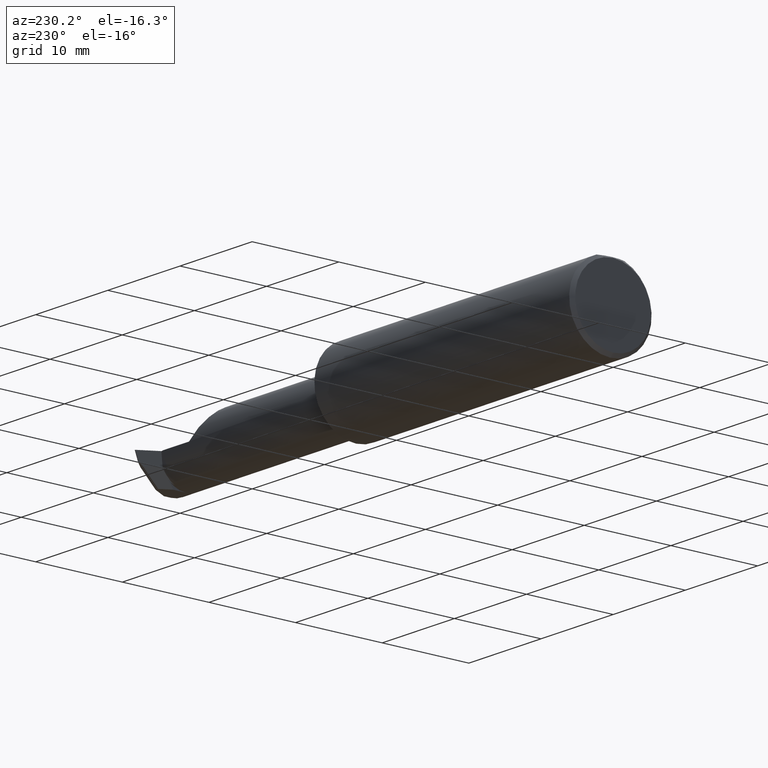
[diagram: clean part render]
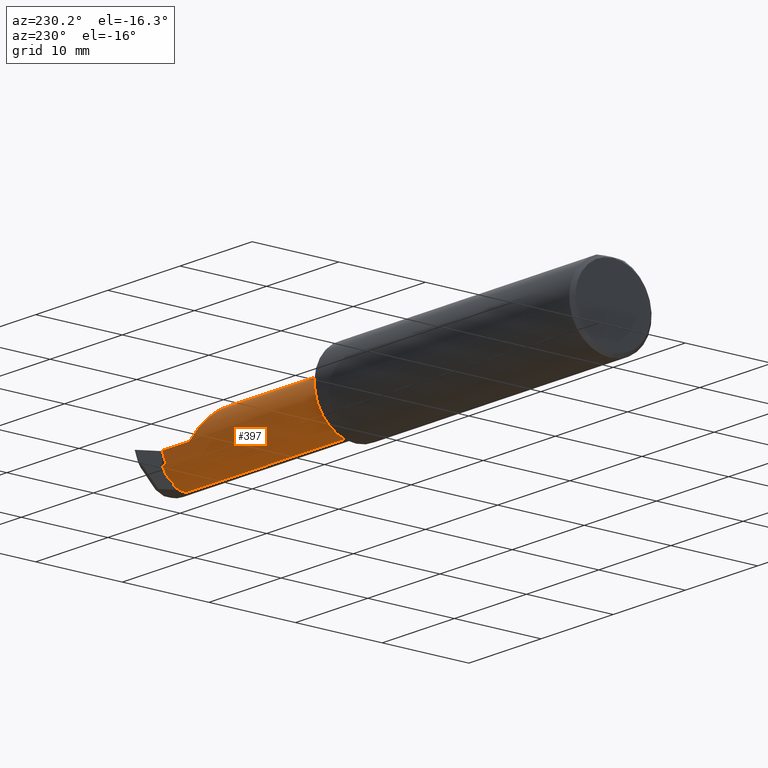
[diagram: same view with one face highlighted and labeled with its STEP entity id]
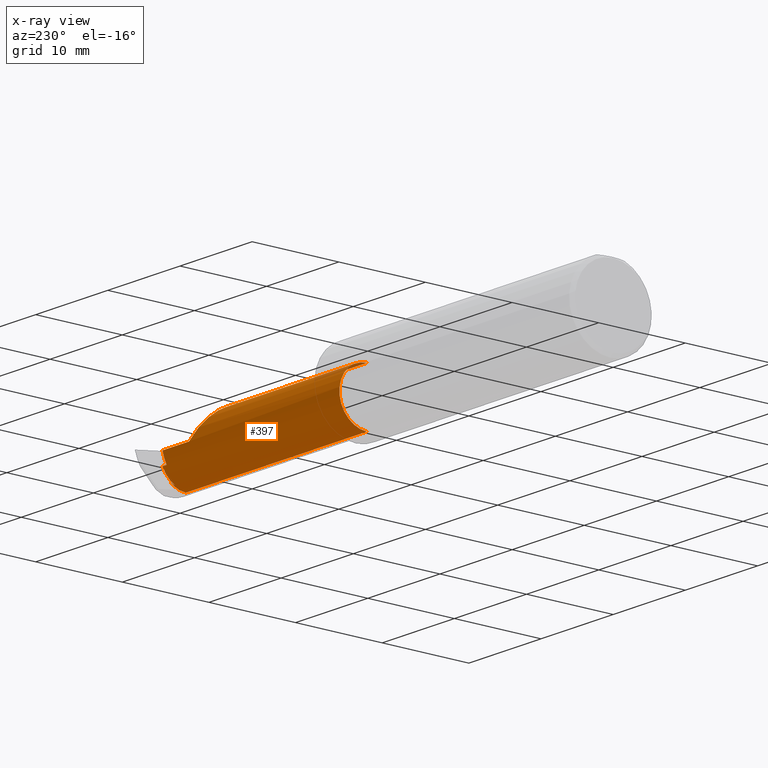
[diagram: x-ray of the same camera — body ghosted, the highlighted face saturated]
A machine part, auxiliary view. The second image highlights one B-rep face of the part: STEP entity #397.
The next image is the same camera in x-ray: the body ghosted, the highlighted face saturated — about 1% of this face is hidden behind the body in this view.
In plain terms, the highlighted cylindrical surface (edge-blend (fillet) strip) has radius 3.175 mm, axis along (-1, -0, -0).
Its self-contained STEP definition (entity closure, byte-faithful):
#1 = CARTESIAN_POINT ( 'NONE',  ( 2.408768555666735978, 0.04119893105087686636, -0.05226509597430411408 ) ) ;
#14 = CARTESIAN_POINT ( 'NONE',  ( 2.409370448767462314, 0.03851830851078916901, -0.05773402954892806194 ) ) ;
#21 = AXIS2_PLACEMENT_3D ( 'NONE', #585, #361, #441 ) ;
#31 = CARTESIAN_POINT ( 'NONE',  ( 2.409054084941633977, 0.03909855666502076027, -0.05660582317468466906 ) ) ;
#80 = CARTESIAN_POINT ( 'NONE',  ( 2.395000000000000018, 0.05265000000000001623, 0.000000000000000000 ) ) ;
#82 =( BOUNDED_CURVE ( )  B_SPLINE_CURVE ( 3, ( #839, #617, #925, #920 ),
 .UNSPECIFIED., .F., .T. ) 
 B_SPLINE_CURVE_WITH_KNOTS ( ( 4, 4 ),
 ( 4.715188984043361842, 6.283185307179586232 ),
 .UNSPECIFIED. ) 
 CURVE ( )  GEOMETRIC_REPRESENTATION_ITEM ( )  RATIONAL_B_SPLINE_CURVE ( ( 1.000000000000000000, 0.8053973591226777362, 0.8053973591226777362, 1.000000000000000000 ) ) 
 REPRESENTATION_ITEM ( '' )  );
#84 = VERTEX_POINT ( 'NONE', #1 ) ;
#98 = VERTEX_POINT ( 'NONE', #768 ) ;
#102 = DIRECTION ( 'NONE',  ( 0.000000000000000000, 0.000000000000000000, 1.000000000000000000 ) ) ;
#103 = CARTESIAN_POINT ( 'NONE',  ( 1.405000000000000249, -0.07234999999999998377, 0.1250000000000000000 ) ) ;
#112 = VERTEX_POINT ( 'NONE', #463 ) ;
#113 = CARTESIAN_POINT ( 'NONE',  ( 2.385548931050876842, 0.04119893105087687329, -0.05226509597430407938 ) ) ;
#114 = CARTESIAN_POINT ( 'NONE',  ( 1.405000000000000249, -0.07234999999999996989, -0.1250000000000000000 ) ) ;
#126 = CARTESIAN_POINT ( 'NONE',  ( 2.408768555666735978, 0.04119893105087686636, -0.05226509597430411408 ) ) ;
#130 = EDGE_CURVE ( 'NONE', #221, #98, #661, .T. ) ;
#150 = ORIENTED_EDGE ( 'NONE', *, *, #300, .T. ) ;
#155 = DIRECTION ( 'NONE',  ( 0.000000000000000000, 4.439252989704427977E-15, -1.000000000000000000 ) ) ;
#159 = CARTESIAN_POINT ( 'NONE',  ( 2.391724317005160749, 0.05265000000000001623, -0.01811476426934102713 ) ) ;
#175 = ORIENTED_EDGE ( 'NONE', *, *, #802, .T. ) ;
#179 = ORIENTED_EDGE ( 'NONE', *, *, #957, .F. ) ;
#189 = DIRECTION ( 'NONE',  ( -1.000000000000000000, -0.000000000000000000, -0.000000000000000000 ) ) ;
#191 = DIRECTION ( 'NONE',  ( -1.000000000000000000, -0.000000000000000000, -0.000000000000000000 ) ) ;
#206 = DIRECTION ( 'NONE',  ( 1.000000000000000000, 0.000000000000000000, 0.000000000000000000 ) ) ;
#212 = EDGE_CURVE ( 'NONE', #705, #523, #450, .T. ) ;
#221 = VERTEX_POINT ( 'NONE', #335 ) ;
#228 = CARTESIAN_POINT ( 'NONE',  ( 2.385548931050876842, 0.04119893105087687329, -0.05226509597430407938 ) ) ;
#258 = AXIS2_PLACEMENT_3D ( 'NONE', #488, #788, #102 ) ;
#274 = CARTESIAN_POINT ( 'NONE',  ( 1.429999999999999938, -0.07234999999999998377, 0.000000000000000000 ) ) ;
#282 = DIRECTION ( 'NONE',  ( -1.000000000000000000, -0.000000000000000000, -0.000000000000000000 ) ) ;
#300 = EDGE_CURVE ( 'NONE', #697, #747, #566, .T. ) ;
#319 = CARTESIAN_POINT ( 'NONE',  ( 2.409266663148388332, 0.03871363218546797907, -0.05735894390891729810 ) ) ;
#335 = CARTESIAN_POINT ( 'NONE',  ( 2.409054084941633977, 0.03909855666502076027, -0.05660582317468466906 ) ) ;
#336 = CARTESIAN_POINT ( 'NONE',  ( 1.405000000000000249, 0.05265000000000001623, -6.429183357567480113E-17 ) ) ;
#347 = ORIENTED_EDGE ( 'NONE', *, *, #575, .F. ) ;
#353 = DIRECTION ( 'NONE',  ( 0.000000000000000000, 0.000000000000000000, -1.000000000000000000 ) ) ;
#361 = DIRECTION ( 'NONE',  ( -1.000000000000000000, -0.000000000000000000, -0.000000000000000000 ) ) ;
#364 = DIRECTION ( 'NONE',  ( 1.000000000000000000, 0.000000000000000000, 0.000000000000000000 ) ) ;
#368 = EDGE_CURVE ( 'NONE', #112, #84, #596, .T. ) ;
#388 = CARTESIAN_POINT ( 'NONE',  ( 2.418197582037931781, -0.07235000000000001152, -0.1250000000000000000 ) ) ;
#394 =( BOUNDED_CURVE ( )  B_SPLINE_CURVE ( 3, ( #763, #453, #608, #446 ),
 .UNSPECIFIED., .F., .T. ) 
 B_SPLINE_CURVE_WITH_KNOTS ( ( 4, 4 ),
 ( 2.826149962439216790, 3.058127945359532696 ),
 .UNSPECIFIED. ) 
 CURVE ( )  GEOMETRIC_REPRESENTATION_ITEM ( )  RATIONAL_B_SPLINE_CURVE ( ( 1.000000000000000000, 0.9955205433440618146, 0.9955205433440618146, 1.000000000000000000 ) ) 
 REPRESENTATION_ITEM ( '' )  );
#397 = ADVANCED_FACE ( 'NONE', ( #734 ), #663, .T. ) ;
#398 = ORIENTED_EDGE ( 'NONE', *, *, #368, .F. ) ;
#414 = LINE ( 'NONE', #336, #805 ) ;
#419 = ORIENTED_EDGE ( 'NONE', *, *, #975, .F. ) ;
#420 = CARTESIAN_POINT ( 'NONE',  ( 2.395000000000000018, 0.05265000000000001623, 0.000000000000000000 ) ) ;
#424 = CARTESIAN_POINT ( 'NONE',  ( 2.408970555950634918, 0.04034989926761259338, -0.05410966642080770189 ) ) ;
#434 = VERTEX_POINT ( 'NONE', #638 ) ;
#441 = DIRECTION ( 'NONE',  ( 0.000000000000000000, 0.000000000000000000, 1.000000000000000000 ) ) ;
#446 = CARTESIAN_POINT ( 'NONE',  ( 2.413734622005796027, 0.008361908784097661293, -0.09544939905744566355 ) ) ;
#450 = CIRCLE ( 'NONE', #258, 0.1250000000000000000 ) ;
#453 = CARTESIAN_POINT ( 'NONE',  ( 2.411507999980803341, -0.007106926527362874245, -0.1070616118923673199 ) ) ;
#463 = CARTESIAN_POINT ( 'NONE',  ( 2.409370448767462314, 0.03851830851078916901, -0.05773402954892806194 ) ) ;
#473 = CARTESIAN_POINT ( 'NONE',  ( 1.429999999999999938, -0.07234999999999996989, -0.1250000000000000000 ) ) ;
#488 = CARTESIAN_POINT ( 'NONE',  ( 2.250000000000000000, -0.07234999999999998377, 0.000000000000000000 ) ) ;
#500 = EDGE_CURVE ( 'NONE', #112, #221, #601, .T. ) ;
#513 = CARTESIAN_POINT ( 'NONE',  ( 2.413734622005796027, 0.008361908784097661293, -0.09544939905744566355 ) ) ;
#522 = ORIENTED_EDGE ( 'NONE', *, *, #130, .T. ) ;
#523 = VERTEX_POINT ( 'NONE', #893 ) ;
#524 = VERTEX_POINT ( 'NONE', #113 ) ;
#530 = CARTESIAN_POINT ( 'NONE',  ( 2.418197582037931781, -0.07235000000000001152, -0.1250000000000000000 ) ) ;
#536 = CARTESIAN_POINT ( 'NONE',  ( 2.388524533471080957, 0.04877309019558891817, -0.03580979902212567262 ) ) ;
#545 = AXIS2_PLACEMENT_3D ( 'NONE', #274, #206, #353 ) ;
#551 = VERTEX_POINT ( 'NONE', #513 ) ;
#554 = ORIENTED_EDGE ( 'NONE', *, *, #500, .T. ) ;
#564 = CARTESIAN_POINT ( 'NONE',  ( 2.125349999999999184, -0.07234999999999998377, 0.1250000000000000000 ) ) ;
#566 = LINE ( 'NONE', #114, #767 ) ;
#567 = VERTEX_POINT ( 'NONE', #420 ) ;
#575 = EDGE_CURVE ( 'NONE', #84, #524, #808, .T. ) ;
#585 = CARTESIAN_POINT ( 'NONE',  ( 1.405000000000000249, -0.07234999999999998377, 0.000000000000000000 ) ) ;
#596 =( BOUNDED_CURVE ( )  B_SPLINE_CURVE ( 3, ( #673, #741, #424, #126 ),
 .UNSPECIFIED., .F., .T. ) 
 B_SPLINE_CURVE_WITH_KNOTS ( ( 4, 4 ),
 ( 4.411180308844337539, 4.459909643144646552 ),
 .UNSPECIFIED. ) 
 CURVE ( )  GEOMETRIC_REPRESENTATION_ITEM ( )  RATIONAL_B_SPLINE_CURVE ( ( 1.000000000000000000, 0.9998021307870518237, 0.9998021307870518237, 1.000000000000000000 ) ) 
 REPRESENTATION_ITEM ( '' )  );
#600 = ORIENTED_EDGE ( 'NONE', *, *, #754, .F. ) ;
#601 =( BOUNDED_CURVE ( )  B_SPLINE_CURVE ( 3, ( #14, #319, #927, #31 ),
 .UNSPECIFIED., .F., .F. ) 
 B_SPLINE_CURVE_WITH_KNOTS ( ( 4, 4 ),
 ( 3.446885897117472730, 3.457035344740369442 ),
 .UNSPECIFIED. ) 
 CURVE ( )  GEOMETRIC_REPRESENTATION_ITEM ( )  RATIONAL_B_SPLINE_CURVE ( ( 1.000000000000000000, 0.9999914157445015661, 0.9999914157445015661, 1.000000000000000000 ) ) 
 REPRESENTATION_ITEM ( '' )  );
#608 = CARTESIAN_POINT ( 'NONE',  ( 2.413075199203178922, 0.0009645913569521091411, -0.1017045626867887076 ) ) ;
#617 = CARTESIAN_POINT ( 'NONE',  ( 2.176939441571127176, 0.05244493963352191840, 0.07341055842887181382 ) ) ;
#631 = CARTESIAN_POINT ( 'NONE',  ( 2.409054084941633977, -0.07234999999999998377, 0.000000000000000000 ) ) ;
#638 = CARTESIAN_POINT ( 'NONE',  ( 1.429999999999999938, -0.07234999999999998377, 0.1250000000000000000 ) ) ;
#661 = CIRCLE ( 'NONE', #784, 0.1250000000000000000 ) ;
#663 = CYLINDRICAL_SURFACE ( 'NONE', #21, 0.1250000000000000000 ) ;
#669 =( BOUNDED_CURVE ( )  B_SPLINE_CURVE ( 3, ( #388, #827, #759, #766 ),
 .UNSPECIFIED., .F., .T. ) 
 B_SPLINE_CURVE_WITH_KNOTS ( ( 4, 4 ),
 ( 3.320488901919211866, 4.022422357086396616 ),
 .UNSPECIFIED. ) 
 CURVE ( )  GEOMETRIC_REPRESENTATION_ITEM ( )  RATIONAL_B_SPLINE_CURVE ( ( 1.000000000000000000, 0.9593605234527340375, 0.9593605234527340375, 1.000000000000000000 ) ) 
 REPRESENTATION_ITEM ( '' )  );
#671 = VERTEX_POINT ( 'NONE', #564 ) ;
#673 = CARTESIAN_POINT ( 'NONE',  ( 2.409370448767462314, 0.03851830851078916901, -0.05773402954892806194 ) ) ;
#689 = EDGE_LOOP ( 'NONE', ( #179, #150, #175, #926, #600, #930, #844, #419, #347, #398, #554, #522, #821 ) ) ;
#697 = VERTEX_POINT ( 'NONE', #530 ) ;
#705 = VERTEX_POINT ( 'NONE', #752 ) ;
#723 = CARTESIAN_POINT ( 'NONE',  ( 1.405000000000000249, 0.04119893105087687329, -0.05226509597430406551 ) ) ;
#734 = FACE_OUTER_BOUND ( 'NONE', #689, .T. ) ;
#741 = CARTESIAN_POINT ( 'NONE',  ( 2.409171226690772105, 0.03945618158170156181, -0.05593300506159747110 ) ) ;
#744 = VECTOR ( 'NONE', #191, 39.37007874015748143 ) ;
#747 = VERTEX_POINT ( 'NONE', #473 ) ;
#752 = CARTESIAN_POINT ( 'NONE',  ( 2.250000000000000000, 0.05264950999903971612, 0.0003499999999991848933 ) ) ;
#754 = EDGE_CURVE ( 'NONE', #705, #671, #82, .T. ) ;
#759 = CARTESIAN_POINT ( 'NONE',  ( 2.416100958887603234, -0.01444220765322596148, -0.1147325352947253380 ) ) ;
#763 = CARTESIAN_POINT ( 'NONE',  ( 2.409054084941633977, -0.01574417682531606411, -0.1114485566650211257 ) ) ;
#766 = CARTESIAN_POINT ( 'NONE',  ( 2.413734622005796027, 0.008361908784097661293, -0.09544939905744566355 ) ) ;
#767 = VECTOR ( 'NONE', #189, 39.37007874015748143 ) ;
#768 = CARTESIAN_POINT ( 'NONE',  ( 2.409054084941633977, -0.01574417682531606411, -0.1114485566650211257 ) ) ;
#784 = AXIS2_PLACEMENT_3D ( 'NONE', #631, #838, #155 ) ;
#788 = DIRECTION ( 'NONE',  ( -1.000000000000000000, -0.000000000000000000, -0.000000000000000000 ) ) ;
#796 = EDGE_CURVE ( 'NONE', #671, #434, #810, .T. ) ;
#802 = EDGE_CURVE ( 'NONE', #747, #434, #849, .T. ) ;
#803 =( BOUNDED_CURVE ( )  B_SPLINE_CURVE ( 3, ( #228, #536, #159, #80 ),
 .UNSPECIFIED., .F., .F. ) 
 B_SPLINE_CURVE_WITH_KNOTS ( ( 4, 4 ),
 ( 1.139420741225435352, 1.570796326794896780 ),
 .UNSPECIFIED. ) 
 CURVE ( )  GEOMETRIC_REPRESENTATION_ITEM ( )  RATIONAL_B_SPLINE_CURVE ( ( 1.000000000000000000, 0.9845529495419454991, 0.9845529495419454991, 1.000000000000000000 ) ) 
 REPRESENTATION_ITEM ( '' )  );
#805 = VECTOR ( 'NONE', #364, 39.37007874015748143 ) ;
#808 = LINE ( 'NONE', #723, #744 ) ;
#810 = LINE ( 'NONE', #103, #884 ) ;
#821 = ORIENTED_EDGE ( 'NONE', *, *, #963, .T. ) ;
#827 = CARTESIAN_POINT ( 'NONE',  ( 2.417651630723349765, -0.04248585645573448033, -0.1250000000000000278 ) ) ;
#838 = DIRECTION ( 'NONE',  ( -1.000000000000000000, -0.000000000000000000, -0.000000000000000000 ) ) ;
#839 = CARTESIAN_POINT ( 'NONE',  ( 2.250000000000000000, 0.05264950999903971612, 0.0003499999999991848933 ) ) ;
#844 = ORIENTED_EDGE ( 'NONE', *, *, #870, .T. ) ;
#849 = CIRCLE ( 'NONE', #545, 0.1250000000000000000 ) ;
#870 = EDGE_CURVE ( 'NONE', #523, #567, #414, .T. ) ;
#884 = VECTOR ( 'NONE', #282, 39.37007874015748143 ) ;
#893 = CARTESIAN_POINT ( 'NONE',  ( 2.250000000000000000, 0.05265000000000000235, -6.429183357567478880E-17 ) ) ;
#920 = CARTESIAN_POINT ( 'NONE',  ( 2.125349999999999184, -0.07234999999999998377, 0.1250000000000000000 ) ) ;
#925 = CARTESIAN_POINT ( 'NONE',  ( 2.125349999999999184, 0.0007108448279458398980, 0.1250000000000000278 ) ) ;
#926 = ORIENTED_EDGE ( 'NONE', *, *, #796, .F. ) ;
#927 = CARTESIAN_POINT ( 'NONE',  ( 2.409161207634521684, 0.03890704989722559154, -0.05698287188920451996 ) ) ;
#930 = ORIENTED_EDGE ( 'NONE', *, *, #212, .T. ) ;
#957 = EDGE_CURVE ( 'NONE', #697, #551, #669, .T. ) ;
#963 = EDGE_CURVE ( 'NONE', #98, #551, #394, .T. ) ;
#975 = EDGE_CURVE ( 'NONE', #524, #567, #803, .T. ) ;